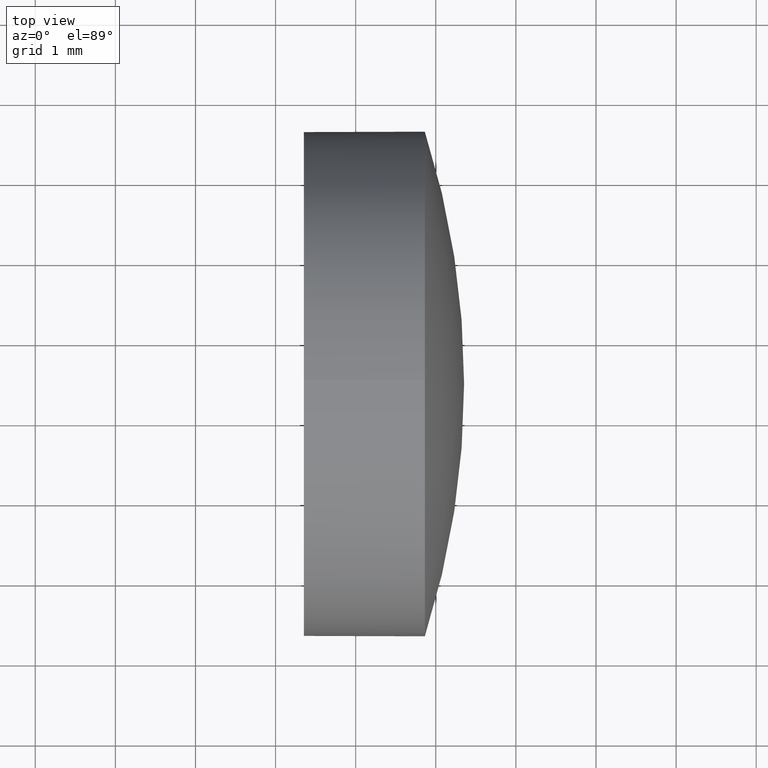
[diagram: clean part render]
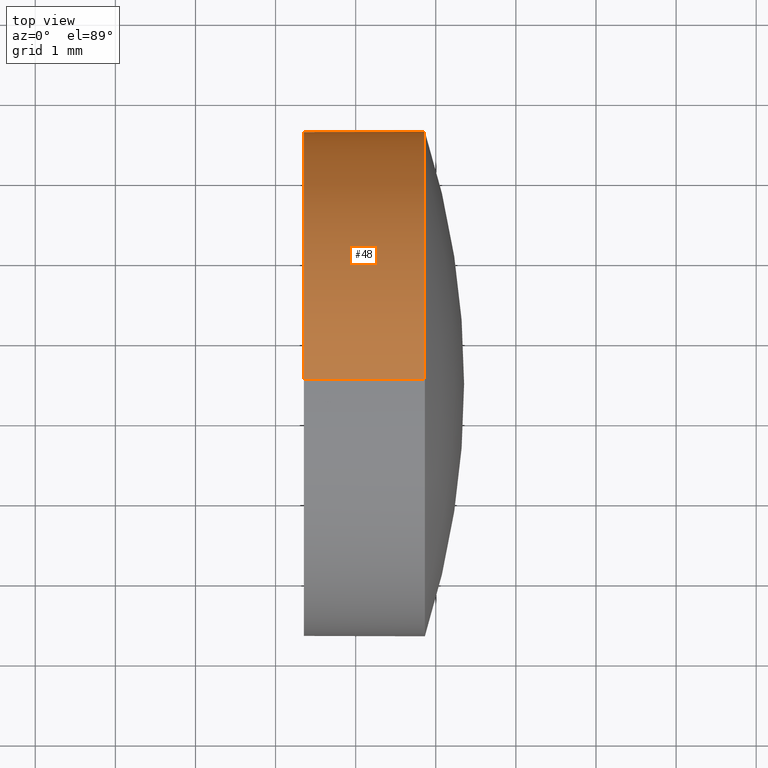
[diagram: same view with one face highlighted and labeled with its STEP entity id]
A machine part, top view. The second image highlights one B-rep face of the part: STEP entity #48.
In plain terms, the highlighted cylindrical surface (partial cylindrical patch) has radius 3.15 mm, axis along (-1, -0, -0).
Its self-contained STEP definition (entity closure, byte-faithful):
#2 = LINE ( 'NONE', #28, #93 ) ;
#5 = DIRECTION ( 'NONE',  ( -1.000000000000000000, -0.0000000000000000000, -0.0000000000000000000 ) ) ;
#10 = VERTEX_POINT ( 'NONE', #106 ) ;
#12 = CYLINDRICAL_SURFACE ( 'NONE', #23, 3.149999999999999900 ) ;
#13 = EDGE_CURVE ( 'NONE', #172, #152, #20, .T. ) ;
#15 = ORIENTED_EDGE ( 'NONE', *, *, #56, .T. ) ;
#16 = EDGE_CURVE ( 'NONE', #152, #10, #173, .T. ) ;
#17 = ORIENTED_EDGE ( 'NONE', *, *, #60, .T. ) ;
#20 = LINE ( 'NONE', #78, #95 ) ;
#23 = AXIS2_PLACEMENT_3D ( 'NONE', #104, #153, #107 ) ;
#28 = CARTESIAN_POINT ( 'NONE',  ( 563.4918386619660900, 45.46463200526830000, -3.149999999999999900 ) ) ;
#29 = DIRECTION ( 'NONE',  ( -1.000000000000000000, -0.0000000000000000000, -0.0000000000000000000 ) ) ;
#34 = CARTESIAN_POINT ( 'NONE',  ( 565.8634668315505700, 48.61463200526829800, 3.857637417314100600E-016 ) ) ;
#38 = ORIENTED_EDGE ( 'NONE', *, *, #49, .T. ) ;
#46 = CARTESIAN_POINT ( 'NONE',  ( 565.8634668315505700, 45.46463200526830000, 0.0000000000000000000 ) ) ;
#47 = DIRECTION ( 'NONE',  ( 0.0000000000000000000, 0.0000000000000000000, 1.000000000000000000 ) ) ;
#48 = ADVANCED_FACE ( 'NONE', ( #57 ), #12, .T. ) ;
#49 = EDGE_CURVE ( 'NONE', #72, #183, #97, .T. ) ;
#52 = CIRCLE ( 'NONE', #176, 3.149999999999999900 ) ;
#56 = EDGE_CURVE ( 'NONE', #172, #72, #52, .T. ) ;
#57 = FACE_OUTER_BOUND ( 'NONE', #154, .T. ) ;
#60 = EDGE_CURVE ( 'NONE', #183, #10, #2, .T. ) ;
#69 = ORIENTED_EDGE ( 'NONE', *, *, #13, .F. ) ;
#72 = VERTEX_POINT ( 'NONE', #34 ) ;
#73 = AXIS2_PLACEMENT_3D ( 'NONE', #163, #79, #103 ) ;
#78 = CARTESIAN_POINT ( 'NONE',  ( 563.4918386619660900, 45.46463200526830000, 3.149999999999999900 ) ) ;
#79 = DIRECTION ( 'NONE',  ( -1.000000000000000000, -0.0000000000000000000, -0.0000000000000000000 ) ) ;
#83 = CARTESIAN_POINT ( 'NONE',  ( 565.8634668315505700, 45.46463200526830000, -3.149999999999999900 ) ) ;
#84 = DIRECTION ( 'NONE',  ( -1.000000000000000000, -0.0000000000000000000, -0.0000000000000000000 ) ) ;
#93 = VECTOR ( 'NONE', #29, 1000.000000000000000 ) ;
#95 = VECTOR ( 'NONE', #5, 1000.000000000000000 ) ;
#97 = CIRCLE ( 'NONE', #169, 3.149999999999999900 ) ;
#103 = DIRECTION ( 'NONE',  ( 0.0000000000000000000, 0.0000000000000000000, 1.000000000000000000 ) ) ;
#104 = CARTESIAN_POINT ( 'NONE',  ( 563.4918386619660900, 45.46463200526830000, 0.0000000000000000000 ) ) ;
#106 = CARTESIAN_POINT ( 'NONE',  ( 564.3534668315505800, 45.46463200526830000, -3.149999999999999900 ) ) ;
#107 = DIRECTION ( 'NONE',  ( 0.0000000000000000000, 0.0000000000000000000, 1.000000000000000000 ) ) ;
#122 = CARTESIAN_POINT ( 'NONE',  ( 565.8634668315505700, 45.46463200526830000, 0.0000000000000000000 ) ) ;
#136 = ORIENTED_EDGE ( 'NONE', *, *, #16, .F. ) ;
#138 = DIRECTION ( 'NONE',  ( -1.000000000000000000, -0.0000000000000000000, -0.0000000000000000000 ) ) ;
#146 = CARTESIAN_POINT ( 'NONE',  ( 565.8634668315505700, 45.46463200526830000, 3.149999999999999900 ) ) ;
#152 = VERTEX_POINT ( 'NONE', #167 ) ;
#153 = DIRECTION ( 'NONE',  ( -1.000000000000000000, -0.0000000000000000000, -0.0000000000000000000 ) ) ;
#154 = EDGE_LOOP ( 'NONE', ( #38, #17, #136, #69, #15 ) ) ;
#163 = CARTESIAN_POINT ( 'NONE',  ( 564.3534668315505800, 45.46463200526830000, 0.0000000000000000000 ) ) ;
#167 = CARTESIAN_POINT ( 'NONE',  ( 564.3534668315505800, 45.46463200526830000, 3.149999999999999900 ) ) ;
#169 = AXIS2_PLACEMENT_3D ( 'NONE', #122, #84, #177 ) ;
#172 = VERTEX_POINT ( 'NONE', #146 ) ;
#173 = CIRCLE ( 'NONE', #73, 3.149999999999999900 ) ;
#176 = AXIS2_PLACEMENT_3D ( 'NONE', #46, #138, #47 ) ;
#177 = DIRECTION ( 'NONE',  ( 0.0000000000000000000, 0.0000000000000000000, 1.000000000000000000 ) ) ;
#183 = VERTEX_POINT ( 'NONE', #83 ) ;